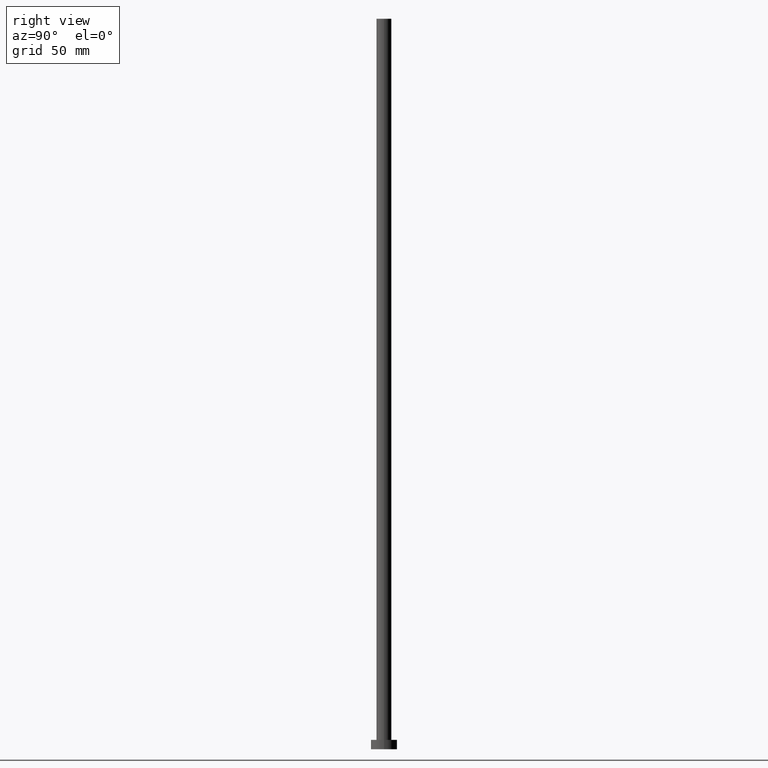
[diagram: clean part render]
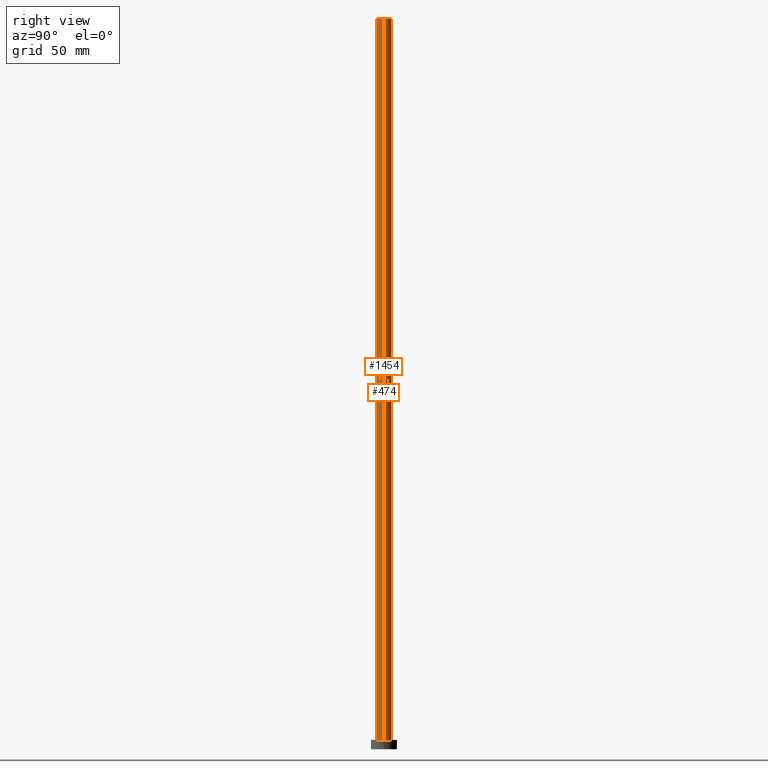
[diagram: same view with one multi-face feature highlighted, each face labeled with its STEP entity id]
A machine part, right view. The highlighted faces form ONE feature: a constant-radius fillet chain: 2 tangent blend faces with common blend radius 4 mm. The faces share edges in the B-rep.
Their STEP definitions:
[1] entity #474 (Cylinder):
#26 = DIRECTION ( 'NONE',  ( -1.000000000000000000, 0.000000000000000000, 0.000000000000000000 ) ) ;
#132 = CARTESIAN_POINT ( 'NONE',  ( -4.000000000000000000, 0.000000000000000000, 390.0000000000000000 ) ) ;
#139 = DIRECTION ( 'NONE',  ( 1.000000000000000000, 0.000000000000000000, 0.000000000000000000 ) ) ;
#149 = LINE ( 'NONE', #132, #736 ) ;
#210 = DIRECTION ( 'NONE',  ( 0.000000000000000000, 0.000000000000000000, 1.000000000000000000 ) ) ;
#237 = FACE_OUTER_BOUND ( 'NONE', #1079, .T. ) ;
#253 = ORIENTED_EDGE ( 'NONE', *, *, #317, .F. ) ;
#271 = CARTESIAN_POINT ( 'NONE',  ( 4.000000000000000000, 4.898587196589412829E-16, 390.0000000000000000 ) ) ;
#317 = EDGE_CURVE ( 'NONE', #1299, #710, #149, .T. ) ;
#323 = AXIS2_PLACEMENT_3D ( 'NONE', #998, #730, #26 ) ;
#327 = ORIENTED_EDGE ( 'NONE', *, *, #387, .F. ) ;
#346 = ORIENTED_EDGE ( 'NONE', *, *, #1486, .T. ) ;
#387 = EDGE_CURVE ( 'NONE', #1544, #1299, #661, .T. ) ;
#428 = AXIS2_PLACEMENT_3D ( 'NONE', #1320, #210, #1176 ) ;
#474 = ADVANCED_FACE ( 'NONE', ( #237 ), #1207, .T. ) ;
#578 = ORIENTED_EDGE ( 'NONE', *, *, #1047, .T. ) ;
#624 = DIRECTION ( 'NONE',  ( -0.000000000000000000, -0.000000000000000000, -1.000000000000000000 ) ) ;
#635 = CIRCLE ( 'NONE', #428, 4.000000000000000000 ) ;
#661 = CIRCLE ( 'NONE', #1501, 4.000000000000000000 ) ;
#696 = CARTESIAN_POINT ( 'NONE',  ( -4.000000000000000000, 0.000000000000000000, 5.000000000000000000 ) ) ;
#710 = VERTEX_POINT ( 'NONE', #696 ) ;
#730 = DIRECTION ( 'NONE',  ( -0.000000000000000000, -0.000000000000000000, -1.000000000000000000 ) ) ;
#736 = VECTOR ( 'NONE', #624, 1000.000000000000000 ) ;
#752 = CARTESIAN_POINT ( 'NONE',  ( 0.000000000000000000, 0.000000000000000000, 390.0000000000000000 ) ) ;
#824 = VERTEX_POINT ( 'NONE', #1541 ) ;
#895 = LINE ( 'NONE', #1113, #1186 ) ;
#993 = DIRECTION ( 'NONE',  ( -0.000000000000000000, -0.000000000000000000, -1.000000000000000000 ) ) ;
#998 = CARTESIAN_POINT ( 'NONE',  ( 0.000000000000000000, 0.000000000000000000, 390.0000000000000000 ) ) ;
#1047 = EDGE_CURVE ( 'NONE', #824, #710, #635, .T. ) ;
#1079 = EDGE_LOOP ( 'NONE', ( #327, #346, #578, #253 ) ) ;
#1113 = CARTESIAN_POINT ( 'NONE',  ( 4.000000000000000000, 4.898587196589412829E-16, 390.0000000000000000 ) ) ;
#1176 = DIRECTION ( 'NONE',  ( 1.000000000000000000, 0.000000000000000000, 0.000000000000000000 ) ) ;
#1186 = VECTOR ( 'NONE', #993, 1000.000000000000000 ) ;
#1207 = CYLINDRICAL_SURFACE ( 'NONE', #323, 4.000000000000000000 ) ;
#1232 = DIRECTION ( 'NONE',  ( 0.000000000000000000, 0.000000000000000000, 1.000000000000000000 ) ) ;
#1299 = VERTEX_POINT ( 'NONE', #1304 ) ;
#1304 = CARTESIAN_POINT ( 'NONE',  ( -4.000000000000000000, 0.000000000000000000, 390.0000000000000000 ) ) ;
#1320 = CARTESIAN_POINT ( 'NONE',  ( 0.000000000000000000, 0.000000000000000000, 5.000000000000000000 ) ) ;
#1486 = EDGE_CURVE ( 'NONE', #1544, #824, #895, .T. ) ;
#1501 = AXIS2_PLACEMENT_3D ( 'NONE', #752, #1232, #139 ) ;
#1541 = CARTESIAN_POINT ( 'NONE',  ( 4.000000000000000000, 4.898587196589412829E-16, 5.000000000000000000 ) ) ;
#1544 = VERTEX_POINT ( 'NONE', #271 ) ;
[2] entity #1454 (Cylinder):
#132 = CARTESIAN_POINT ( 'NONE',  ( -4.000000000000000000, 0.000000000000000000, 390.0000000000000000 ) ) ;
#149 = LINE ( 'NONE', #132, #736 ) ;
#264 = CARTESIAN_POINT ( 'NONE',  ( 0.000000000000000000, 0.000000000000000000, 390.0000000000000000 ) ) ;
#271 = CARTESIAN_POINT ( 'NONE',  ( 4.000000000000000000, 4.898587196589412829E-16, 390.0000000000000000 ) ) ;
#278 = CYLINDRICAL_SURFACE ( 'NONE', #1525, 4.000000000000000000 ) ;
#315 = DIRECTION ( 'NONE',  ( 1.000000000000000000, 0.000000000000000000, 0.000000000000000000 ) ) ;
#317 = EDGE_CURVE ( 'NONE', #1299, #710, #149, .T. ) ;
#325 = DIRECTION ( 'NONE',  ( 0.000000000000000000, 0.000000000000000000, 1.000000000000000000 ) ) ;
#337 = ORIENTED_EDGE ( 'NONE', *, *, #1486, .F. ) ;
#624 = DIRECTION ( 'NONE',  ( -0.000000000000000000, -0.000000000000000000, -1.000000000000000000 ) ) ;
#628 = CIRCLE ( 'NONE', #1522, 4.000000000000000000 ) ;
#630 = AXIS2_PLACEMENT_3D ( 'NONE', #1242, #325, #315 ) ;
#659 = DIRECTION ( 'NONE',  ( -1.000000000000000000, 0.000000000000000000, 0.000000000000000000 ) ) ;
#689 = DIRECTION ( 'NONE',  ( 0.000000000000000000, 0.000000000000000000, 1.000000000000000000 ) ) ;
#696 = CARTESIAN_POINT ( 'NONE',  ( -4.000000000000000000, 0.000000000000000000, 5.000000000000000000 ) ) ;
#710 = VERTEX_POINT ( 'NONE', #696 ) ;
#736 = VECTOR ( 'NONE', #624, 1000.000000000000000 ) ;
#753 = CIRCLE ( 'NONE', #630, 4.000000000000000000 ) ;
#824 = VERTEX_POINT ( 'NONE', #1541 ) ;
#867 = ORIENTED_EDGE ( 'NONE', *, *, #1585, .T. ) ;
#895 = LINE ( 'NONE', #1113, #1186 ) ;
#942 = ORIENTED_EDGE ( 'NONE', *, *, #317, .T. ) ;
#958 = EDGE_LOOP ( 'NONE', ( #337, #1436, #942, #867 ) ) ;
#993 = DIRECTION ( 'NONE',  ( -0.000000000000000000, -0.000000000000000000, -1.000000000000000000 ) ) ;
#1113 = CARTESIAN_POINT ( 'NONE',  ( 4.000000000000000000, 4.898587196589412829E-16, 390.0000000000000000 ) ) ;
#1186 = VECTOR ( 'NONE', #993, 1000.000000000000000 ) ;
#1198 = CARTESIAN_POINT ( 'NONE',  ( 0.000000000000000000, 0.000000000000000000, 390.0000000000000000 ) ) ;
#1242 = CARTESIAN_POINT ( 'NONE',  ( 0.000000000000000000, 0.000000000000000000, 5.000000000000000000 ) ) ;
#1248 = DIRECTION ( 'NONE',  ( -0.000000000000000000, -0.000000000000000000, -1.000000000000000000 ) ) ;
#1274 = EDGE_CURVE ( 'NONE', #1299, #1544, #628, .T. ) ;
#1299 = VERTEX_POINT ( 'NONE', #1304 ) ;
#1304 = CARTESIAN_POINT ( 'NONE',  ( -4.000000000000000000, 0.000000000000000000, 390.0000000000000000 ) ) ;
#1377 = FACE_OUTER_BOUND ( 'NONE', #958, .T. ) ;
#1436 = ORIENTED_EDGE ( 'NONE', *, *, #1274, .F. ) ;
#1454 = ADVANCED_FACE ( 'NONE', ( #1377 ), #278, .T. ) ;
#1486 = EDGE_CURVE ( 'NONE', #1544, #824, #895, .T. ) ;
#1522 = AXIS2_PLACEMENT_3D ( 'NONE', #1198, #689, #1549 ) ;
#1525 = AXIS2_PLACEMENT_3D ( 'NONE', #264, #1248, #659 ) ;
#1541 = CARTESIAN_POINT ( 'NONE',  ( 4.000000000000000000, 4.898587196589412829E-16, 5.000000000000000000 ) ) ;
#1544 = VERTEX_POINT ( 'NONE', #271 ) ;
#1549 = DIRECTION ( 'NONE',  ( 1.000000000000000000, 0.000000000000000000, 0.000000000000000000 ) ) ;
#1585 = EDGE_CURVE ( 'NONE', #710, #824, #753, .T. ) ;